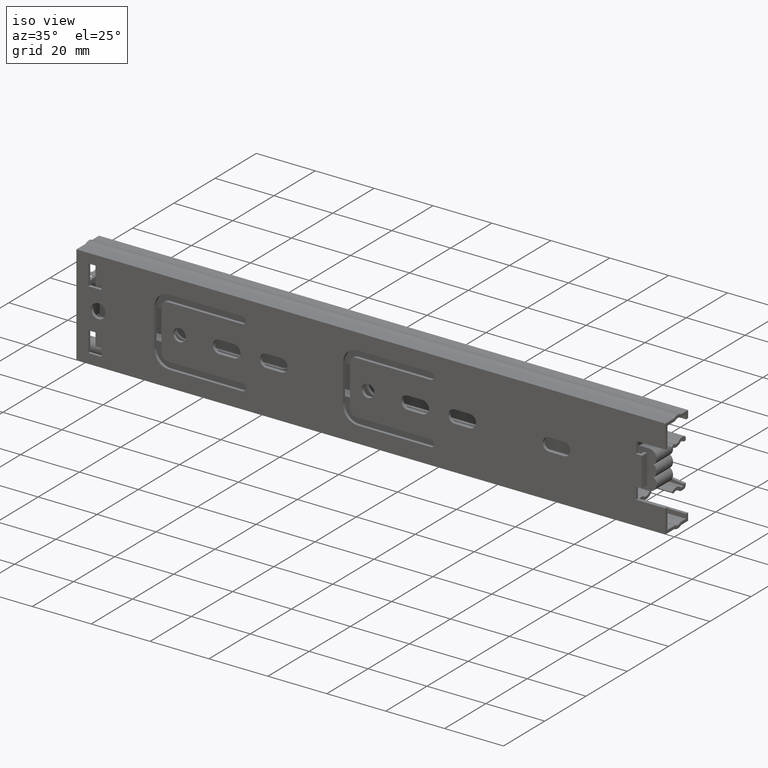
[diagram: clean part render]
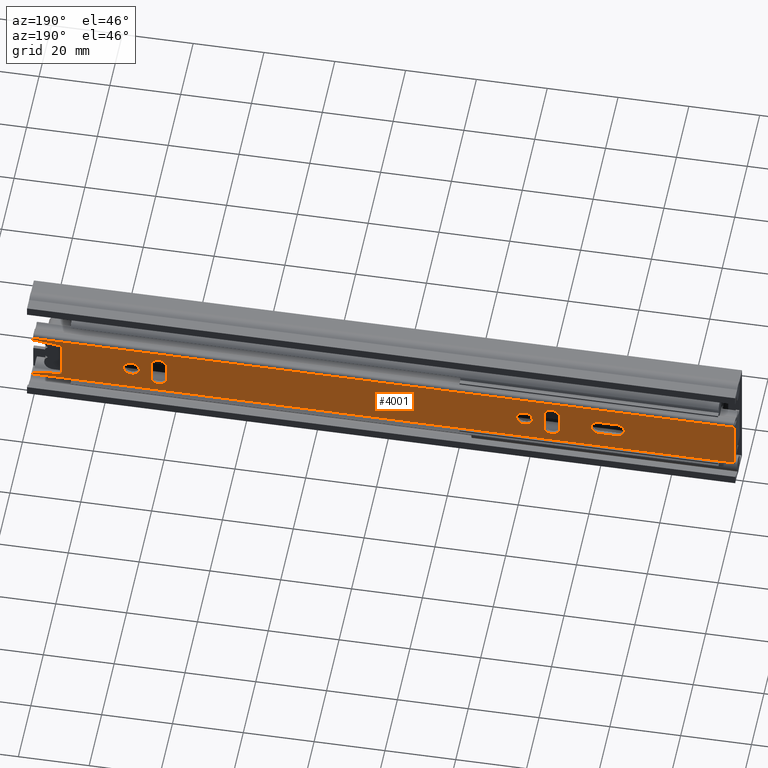
[diagram: tour spotlight — one face highlighted and labeled with its STEP entity id]
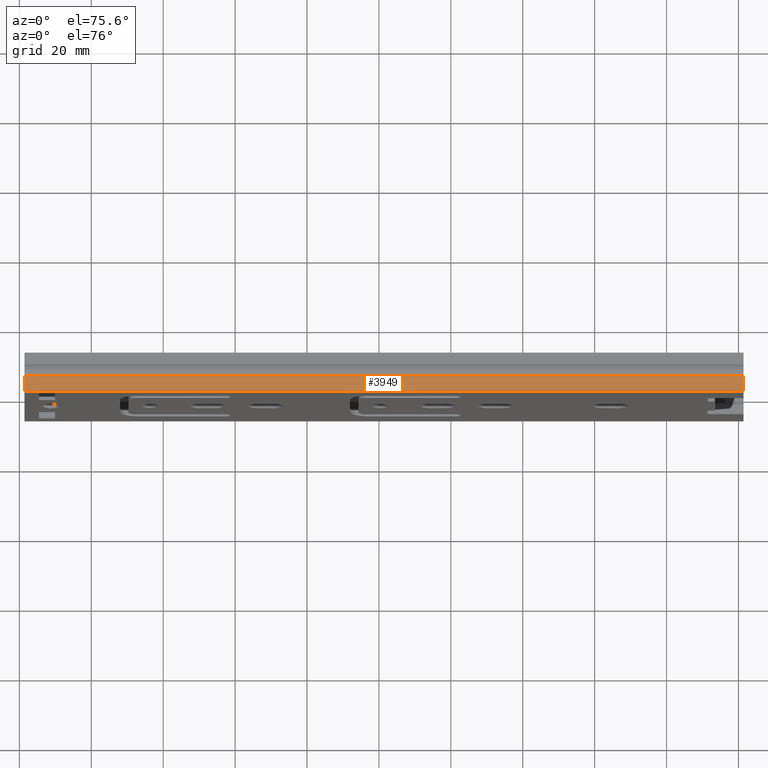
[diagram: tour spotlight — one face highlighted and labeled with its STEP entity id]
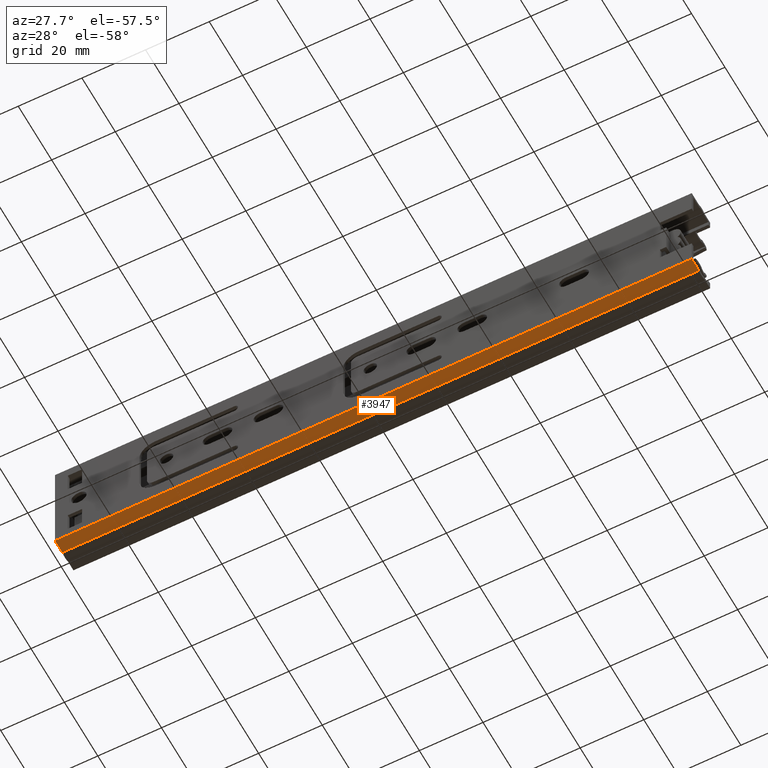
[diagram: tour spotlight — one face highlighted and labeled with its STEP entity id]
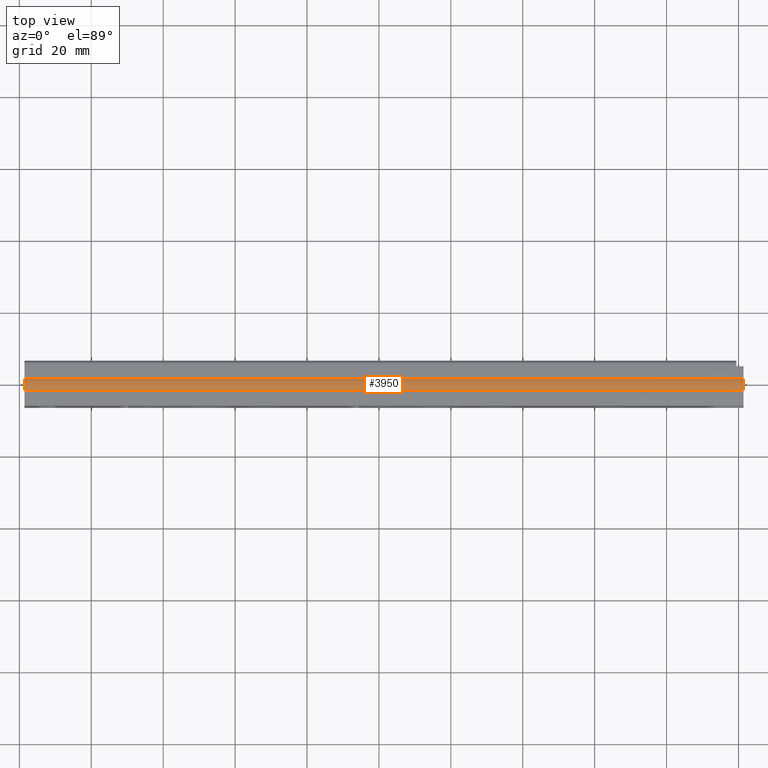
[diagram: tour spotlight — one face highlighted and labeled with its STEP entity id]
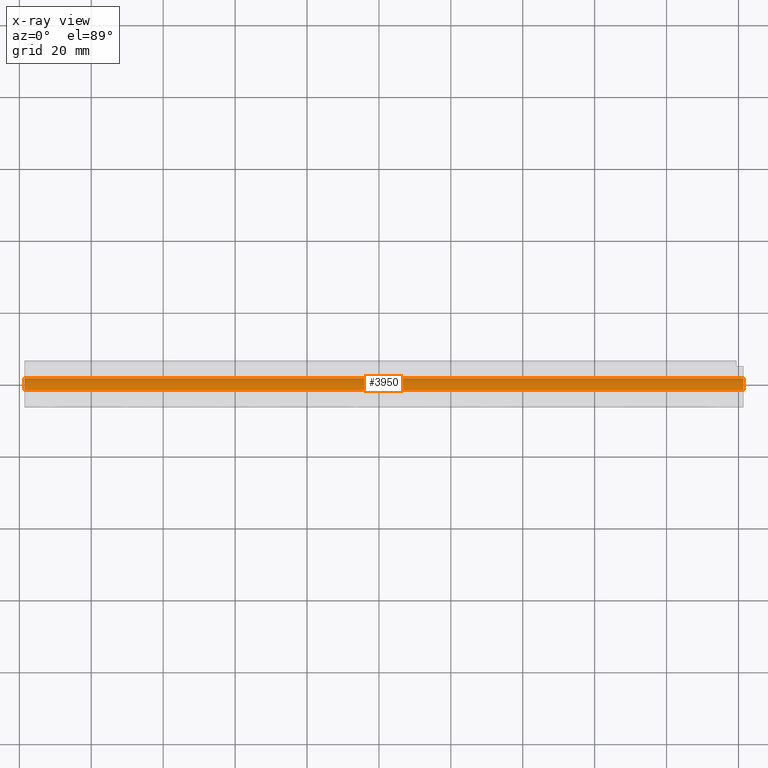
[diagram: x-ray of the same camera — body ghosted, this tour face saturated]
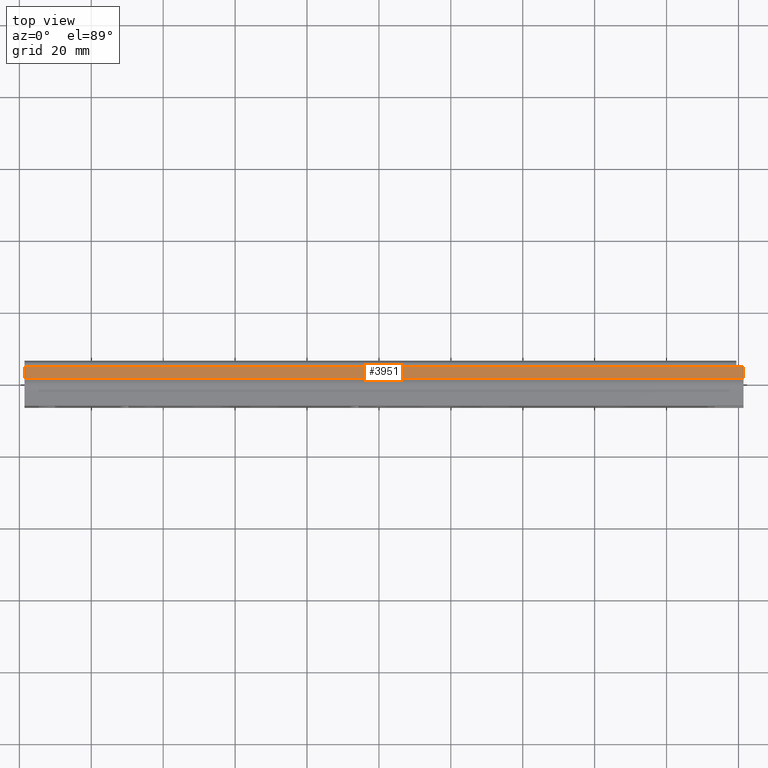
[diagram: tour spotlight — one face highlighted and labeled with its STEP entity id]
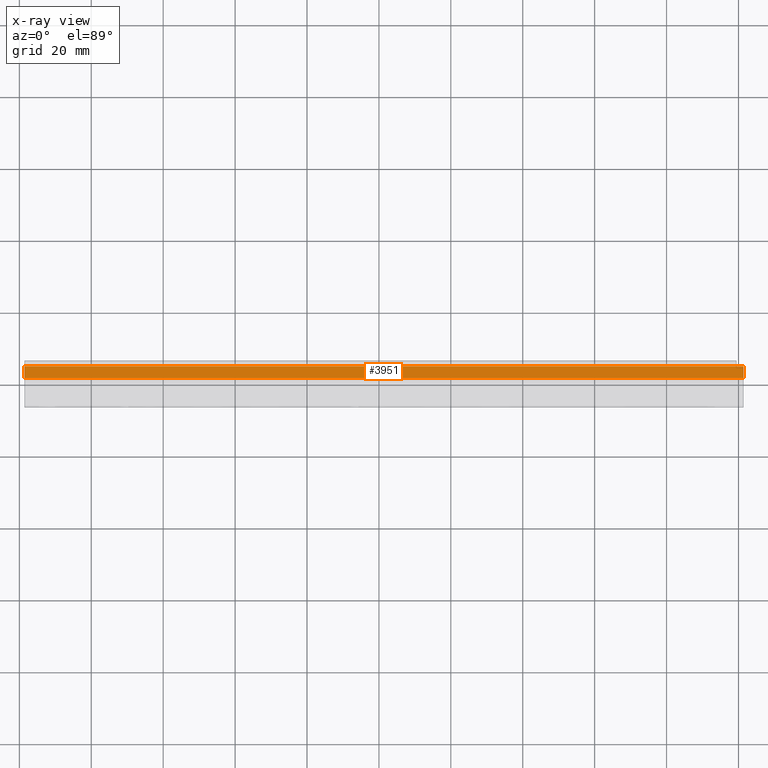
[diagram: x-ray of the same camera — body ghosted, this tour face saturated]
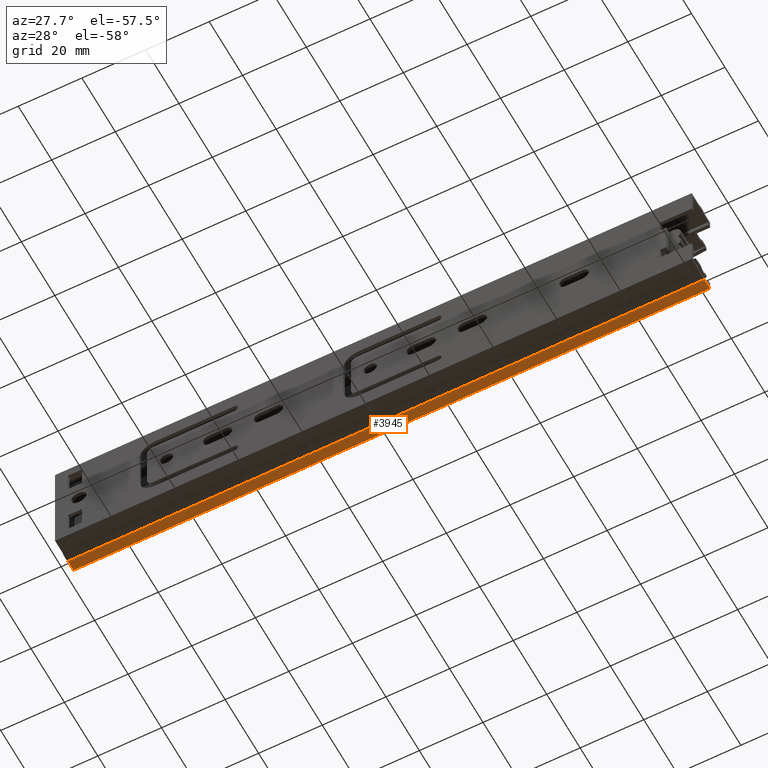
[diagram: tour spotlight — one face highlighted and labeled with its STEP entity id]
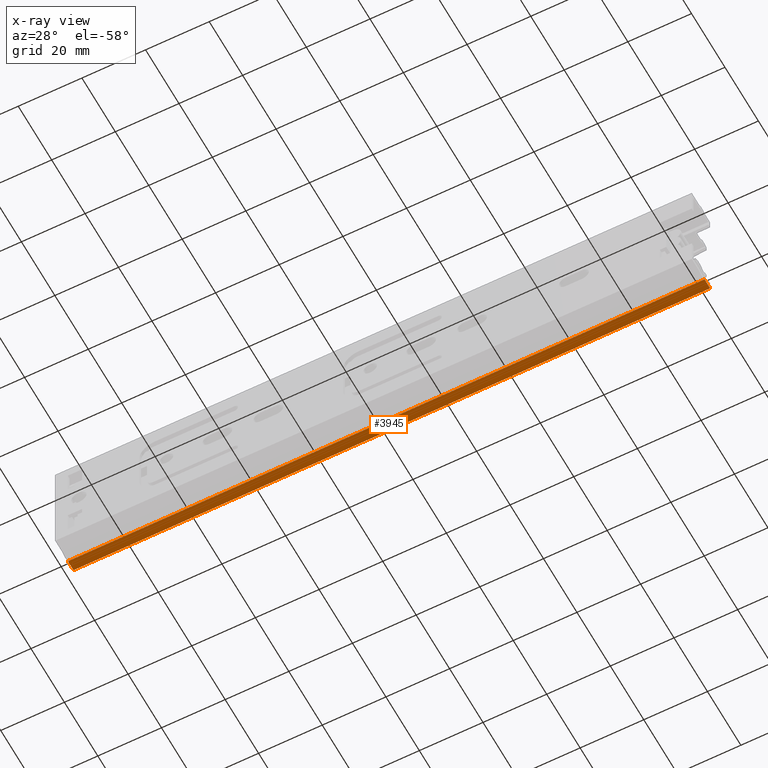
[diagram: x-ray of the same camera — body ghosted, this tour face saturated]
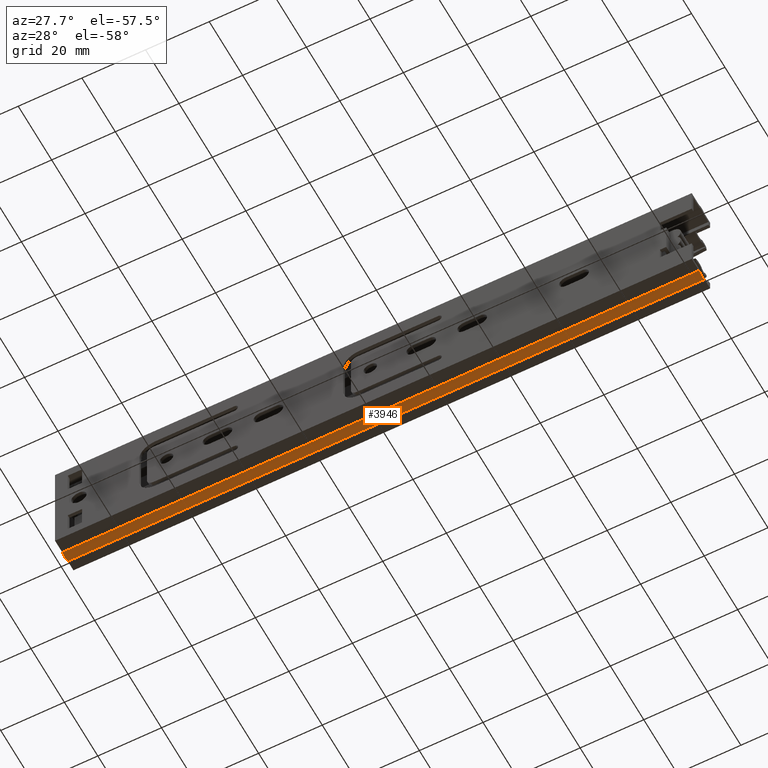
[diagram: tour spotlight — one face highlighted and labeled with its STEP entity id]
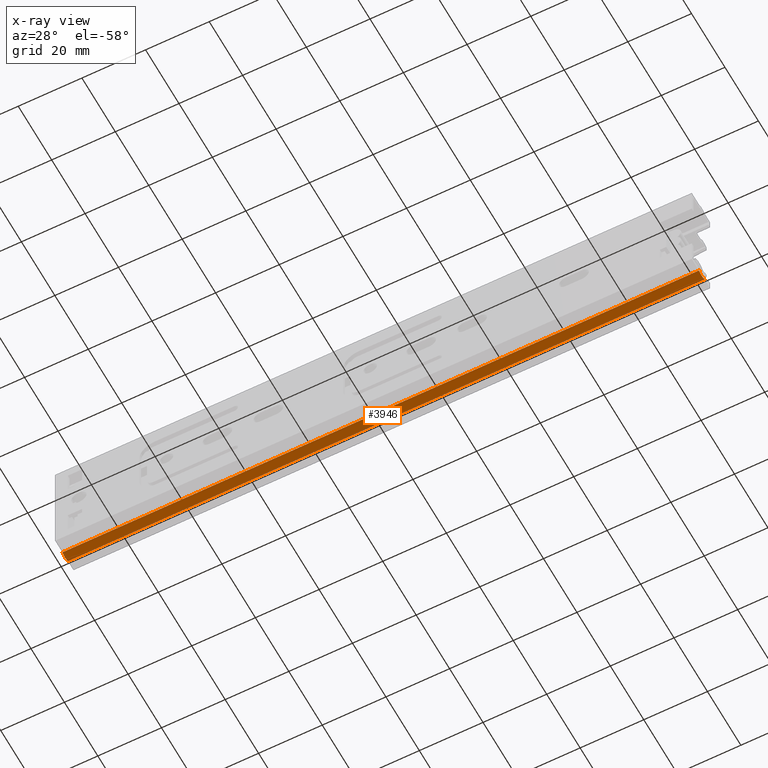
[diagram: x-ray of the same camera — body ghosted, this tour face saturated]
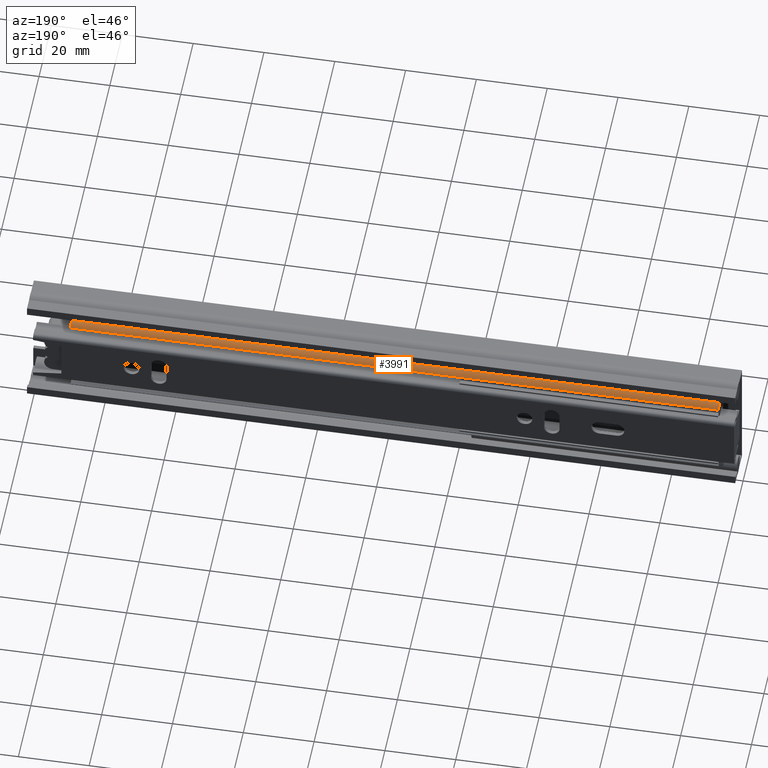
[diagram: tour spotlight — one face highlighted and labeled with its STEP entity id]
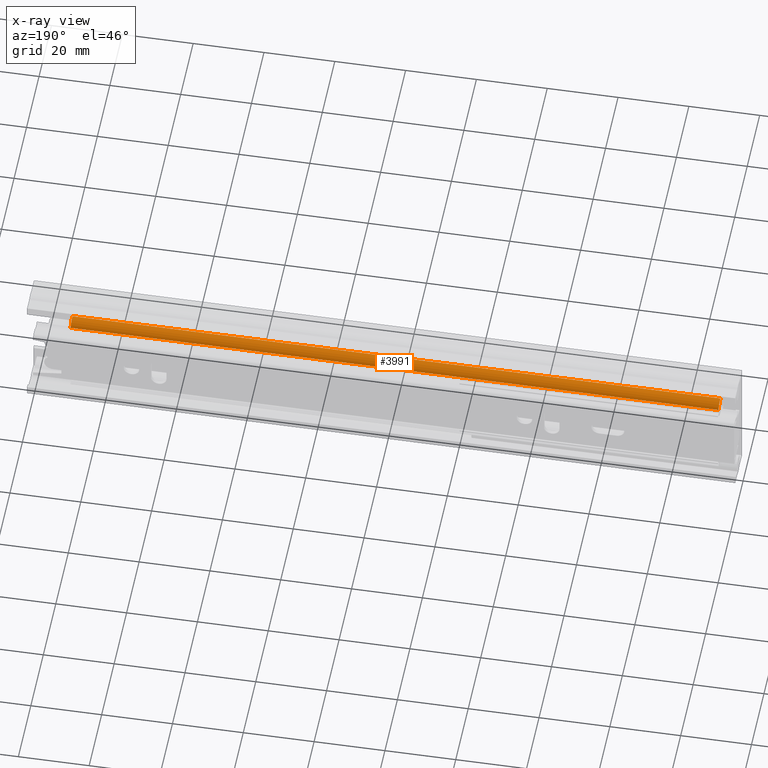
[diagram: x-ray of the same camera — body ghosted, this tour face saturated]
A machine part: a face-by-face anatomy tour. The part has 206 B-rep faces; the first image is the clean iso view, then the 8 largest visible faces are spotlighted one at a time (largest first), each with its STEP entity span.

Face 1 — auxiliary view, entity #4001. In plain terms, the highlighted planar face has unit normal (-0, 1, -0).
Definition (entity closure, byte-faithful):
#160=FACE_BOUND('',#551,.T.);
#161=FACE_BOUND('',#552,.T.);
#162=FACE_BOUND('',#553,.T.);
#163=FACE_BOUND('',#554,.T.);
#164=FACE_BOUND('',#555,.T.);
#310=FACE_OUTER_BOUND('',#550,.T.);
#550=EDGE_LOOP('',(#3366,#3367,#3368,#3369,#3370,#3371,#3372,#3373));
#551=EDGE_LOOP('',(#3374,#3375,#3376,#3377));
#552=EDGE_LOOP('',(#3378,#3379,#3380,#3381));
#553=EDGE_LOOP('',(#3382));
#554=EDGE_LOOP('',(#3383));
#555=EDGE_LOOP('',(#3384,#3385,#3386,#3387));
#908=LINE('',#6365,#1334);
#910=LINE('',#6371,#1336);
#922=LINE('',#6417,#1348);
#923=LINE('',#6419,#1349);
#924=LINE('',#6421,#1350);
#925=LINE('',#6423,#1351);
#926=LINE('',#6425,#1352);
#927=LINE('',#6426,#1353);
#928=LINE('',#6431,#1354);
#929=LINE('',#6434,#1355);
#930=LINE('',#6439,#1356);
#931=LINE('',#6442,#1357);
#932=LINE('',#6451,#1358);
#933=LINE('',#6454,#1359);
#1334=VECTOR('',#5196,198.);
#1336=VECTOR('',#5202,14.3000000000001);
#1348=VECTOR('',#5238,0.650000000000026);
#1349=VECTOR('',#5239,8.06225774829856);
#1350=VECTOR('',#5240,11.);
#1351=VECTOR('',#5241,8.06225774829856);
#1352=VECTOR('',#5242,0.650000000000024);
#1353=VECTOR('',#5243,198.);
#1354=VECTOR('',#5246,4.89999999999999);
#1355=VECTOR('',#5249,4.89999999999999);
#1356=VECTOR('',#5252,4.9);
#1357=VECTOR('',#5255,4.9);
#1358=VECTOR('',#5262,4.9);
#1359=VECTOR('',#5265,4.9);
#1593=CIRCLE('',#4329,2.2);
#1594=CIRCLE('',#4330,2.2);
#1595=CIRCLE('',#4331,2.2);
#1596=CIRCLE('',#4332,2.2);
#1597=CIRCLE('',#4333,2.2);
#1598=CIRCLE('',#4334,2.2);
#1599=CIRCLE('',#4335,2.2);
#1600=CIRCLE('',#4336,2.2);
#1883=VERTEX_POINT('',#6362);
#1884=VERTEX_POINT('',#6364);
#1886=VERTEX_POINT('',#6370);
#1908=VERTEX_POINT('',#6416);
#1909=VERTEX_POINT('',#6418);
#1910=VERTEX_POINT('',#6420);
#1911=VERTEX_POINT('',#6422);
#1912=VERTEX_POINT('',#6424);
#1913=VERTEX_POINT('',#6427);
#1914=VERTEX_POINT('',#6428);
#1915=VERTEX_POINT('',#6430);
#1916=VERTEX_POINT('',#6432);
#1917=VERTEX_POINT('',#6435);
#1918=VERTEX_POINT('',#6436);
#1919=VERTEX_POINT('',#6438);
#1920=VERTEX_POINT('',#6440);
#1921=VERTEX_POINT('',#6443);
#1922=VERTEX_POINT('',#6445);
#1923=VERTEX_POINT('',#6447);
#1924=VERTEX_POINT('',#6448);
#1925=VERTEX_POINT('',#6450);
#1926=VERTEX_POINT('',#6452);
#2391=EDGE_CURVE('',#1883,#1884,#908,.T.);
#2394=EDGE_CURVE('',#1884,#1886,#910,.T.);
#2417=EDGE_CURVE('',#1908,#1883,#922,.T.);
#2418=EDGE_CURVE('',#1908,#1909,#923,.T.);
#2419=EDGE_CURVE('',#1909,#1910,#924,.T.);
#2420=EDGE_CURVE('',#1910,#1911,#925,.T.);
#2421=EDGE_CURVE('',#1912,#1911,#926,.T.);
#2422=EDGE_CURVE('',#1886,#1912,#927,.T.);
#2423=EDGE_CURVE('',#1913,#1914,#1593,.T.);
#2424=EDGE_CURVE('',#1914,#1915,#928,.T.);
#2425=EDGE_CURVE('',#1915,#1916,#1594,.T.);
#2426=EDGE_CURVE('',#1916,#1913,#929,.T.);
#2427=EDGE_CURVE('',#1917,#1918,#1595,.T.);
#2428=EDGE_CURVE('',#1918,#1919,#930,.T.);
#2429=EDGE_CURVE('',#1919,#1920,#1596,.T.);
#2430=EDGE_CURVE('',#1920,#1917,#931,.T.);
#2431=EDGE_CURVE('',#1921,#1921,#1597,.T.);
#2432=EDGE_CURVE('',#1922,#1922,#1598,.T.);
#2433=EDGE_CURVE('',#1923,#1924,#1599,.T.);
#2434=EDGE_CURVE('',#1924,#1925,#932,.T.);
#2435=EDGE_CURVE('',#1925,#1926,#1600,.T.);
#2436=EDGE_CURVE('',#1926,#1923,#933,.T.);
#3366=ORIENTED_EDGE('',*,*,#2391,.F.);
#3367=ORIENTED_EDGE('',*,*,#2417,.F.);
#3368=ORIENTED_EDGE('',*,*,#2418,.T.);
#3369=ORIENTED_EDGE('',*,*,#2419,.T.);
#3370=ORIENTED_EDGE('',*,*,#2420,.T.);
#3371=ORIENTED_EDGE('',*,*,#2421,.F.);
#3372=ORIENTED_EDGE('',*,*,#2422,.F.);
#3373=ORIENTED_EDGE('',*,*,#2394,.F.);
#3374=ORIENTED_EDGE('',*,*,#2423,.T.);
#3375=ORIENTED_EDGE('',*,*,#2424,.T.);
#3376=ORIENTED_EDGE('',*,*,#2425,.T.);
#3377=ORIENTED_EDGE('',*,*,#2426,.T.);
#3378=ORIENTED_EDGE('',*,*,#2427,.T.);
#3379=ORIENTED_EDGE('',*,*,#2428,.T.);
#3380=ORIENTED_EDGE('',*,*,#2429,.T.);
#3381=ORIENTED_EDGE('',*,*,#2430,.T.);
#3382=ORIENTED_EDGE('',*,*,#2431,.T.);
#3383=ORIENTED_EDGE('',*,*,#2432,.T.);
#3384=ORIENTED_EDGE('',*,*,#2433,.T.);
#3385=ORIENTED_EDGE('',*,*,#2434,.T.);
#3386=ORIENTED_EDGE('',*,*,#2435,.T.);
#3387=ORIENTED_EDGE('',*,*,#2436,.T.);
#3818=PLANE('',#4328);
#4001=ADVANCED_FACE('',(#310,#160,#161,#162,#163,#164),#3818,.T.);
#4328=AXIS2_PLACEMENT_3D('',#6415,#5236,#5237);
#4329=AXIS2_PLACEMENT_3D('',#6429,#5244,#5245);
#4330=AXIS2_PLACEMENT_3D('',#6433,#5247,#5248);
#4331=AXIS2_PLACEMENT_3D('',#6437,#5250,#5251);
#4332=AXIS2_PLACEMENT_3D('',#6441,#5253,#5254);
#4333=AXIS2_PLACEMENT_3D('',#6444,#5256,#5257);
#4334=AXIS2_PLACEMENT_3D('',#6446,#5258,#5259);
#4335=AXIS2_PLACEMENT_3D('',#6449,#5260,#5261);
#4336=AXIS2_PLACEMENT_3D('',#6453,#5263,#5264);
#5196=DIRECTION('',(-1.,0.,0.));
#5202=DIRECTION('',(0.,0.,-1.));
#5236=DIRECTION('center_axis',(0.,1.,0.));
#5237=DIRECTION('ref_axis',(0.,0.,1.));
#5238=DIRECTION('',(0.,0.,1.));
#5239=DIRECTION('',(-0.992277876713668,0.,-0.124034734589208));
#5240=DIRECTION('',(0.,0.,-1.));
#5241=DIRECTION('',(0.992277876713668,0.,-0.124034734589208));
#5242=DIRECTION('',(0.,0.,1.));
#5243=DIRECTION('',(1.,0.,0.));
#5244=DIRECTION('center_axis',(0.,-1.,0.));
#5245=DIRECTION('ref_axis',(-1.,0.,7.56970244062635E-15));
#5246=DIRECTION('',(-1.45008721583694E-14,0.,-1.));
#5247=DIRECTION('center_axis',(0.,-1.,0.));
#5248=DIRECTION('ref_axis',(1.,0.,-8.07434927000118E-15));
#5249=DIRECTION('',(1.45008721583694E-14,0.,1.));
#5250=DIRECTION('center_axis',(0.,-1.,0.));
#5251=DIRECTION('ref_axis',(0.,0.,1.));
#5252=DIRECTION('',(1.,0.,0.));
#5253=DIRECTION('center_axis',(0.,-1.,0.));
#5254=DIRECTION('ref_axis',(0.,0.,-1.));
#5255=DIRECTION('',(-1.,0.,0.));
#5256=DIRECTION('center_axis',(0.,-1.,0.));
#5257=DIRECTION('ref_axis',(-1.,0.,0.));
#5258=DIRECTION('center_axis',(0.,-1.,0.));
#5259=DIRECTION('ref_axis',(-1.,0.,0.));
#5260=DIRECTION('center_axis',(0.,-1.,0.));
#5261=DIRECTION('ref_axis',(-1.,0.,0.));
#5262=DIRECTION('',(0.,0.,-1.));
#5263=DIRECTION('center_axis',(0.,-1.,0.));
#5264=DIRECTION('ref_axis',(1.,0.,0.));
#5265=DIRECTION('',(1.81260901979617E-15,0.,1.));
#6362=CARTESIAN_POINT('',(99.,12.7,7.15000000000003));
#6364=CARTESIAN_POINT('',(-99.,12.7,7.15000000000003));
#6365=CARTESIAN_POINT('',(0.,12.7,7.15000000000003));
#6370=CARTESIAN_POINT('',(-99.,12.7,-7.15000000000003));
#6371=CARTESIAN_POINT('',(-99.,12.7,0.));
#6415=CARTESIAN_POINT('Origin',(0.,12.7,-8.15));
#6416=CARTESIAN_POINT('',(99.,12.7,6.5));
#6417=CARTESIAN_POINT('',(99.,12.7,-8.15));
#6418=CARTESIAN_POINT('',(91.,12.7,5.5));
#6419=CARTESIAN_POINT('',(49.36,12.7,0.295000000000013));
#6420=CARTESIAN_POINT('',(91.,12.7,-5.5));
#6421=CARTESIAN_POINT('',(91.,12.7,-1.325));
#6422=CARTESIAN_POINT('',(99.,12.7,-6.5));
#6423=CARTESIAN_POINT('',(46.3630769230769,12.7,0.0796153846153858));
#6424=CARTESIAN_POINT('',(99.,12.7,-7.15000000000003));
#6425=CARTESIAN_POINT('',(99.,12.7,-8.15));
#6426=CARTESIAN_POINT('',(0.,12.7,-7.15000000000003));
#6427=CARTESIAN_POINT('',(65.7000000000001,12.7,2.44999999999998));
#6428=CARTESIAN_POINT('',(61.3000000000001,12.7,2.45000000000001));
#6429=CARTESIAN_POINT('Origin',(63.5,12.7,2.44999999999999));
#6430=CARTESIAN_POINT('',(61.3,12.7,-2.44999999999998));
#6431=CARTESIAN_POINT('',(61.3,12.7,-2.85000000000044));
#6432=CARTESIAN_POINT('',(65.7,12.7,-2.45000000000001));
#6433=CARTESIAN_POINT('Origin',(63.5,12.7,-2.44999999999999));
#6434=CARTESIAN_POINT('',(65.6999999999999,12.7,-5.30000000000048));
#6435=CARTESIAN_POINT('',(-65.8,12.7,2.2));
#6436=CARTESIAN_POINT('',(-65.8,12.7,-2.2));
#6437=CARTESIAN_POINT('Origin',(-65.8,12.7,0.));
#6438=CARTESIAN_POINT('',(-60.9,12.7,-2.2));
#6439=CARTESIAN_POINT('',(-32.9,12.7,-2.2));
#6440=CARTESIAN_POINT('',(-60.9,12.7,2.2));
#6441=CARTESIAN_POINT('Origin',(-60.9,12.7,0.));
#6442=CARTESIAN_POINT('',(-30.45,12.7,2.2));
#6443=CARTESIAN_POINT('',(-37.6,12.7,8.40800728812739E-16));
#6444=CARTESIAN_POINT('Origin',(-39.8,12.7,1.11022302462516E-15));
#6445=CARTESIAN_POINT('',(73.4000000000001,12.7,-2.69422295812418E-16));
#6446=CARTESIAN_POINT('Origin',(71.2000000000001,12.7,0.));
#6447=CARTESIAN_POINT('',(-45.3,12.7,2.45));
#6448=CARTESIAN_POINT('',(-49.7,12.7,2.45));
#6449=CARTESIAN_POINT('Origin',(-47.5,12.7,2.45));
#6450=CARTESIAN_POINT('',(-49.7,12.7,-2.45));
#6451=CARTESIAN_POINT('',(-49.7,12.7,-2.85));
#6452=CARTESIAN_POINT('',(-45.3,12.7,-2.45));
#6453=CARTESIAN_POINT('Origin',(-47.5,12.7,-2.45));
#6454=CARTESIAN_POINT('',(-45.3,12.7,-5.29999999999996));

Face 2 — auxiliary view, entity #3949. In plain terms, the highlighted planar face has unit normal (0, 0, 1).
Definition (entity closure, byte-faithful):
#258=FACE_OUTER_BOUND('',#492,.T.);
#492=EDGE_LOOP('',(#3090,#3091,#3092,#3093));
#706=LINE('',#5821,#1132);
#746=LINE('',#5954,#1172);
#821=LINE('',#6115,#1247);
#828=LINE('',#6132,#1254);
#1132=VECTOR('',#4630,200.);
#1172=VECTOR('',#4726,4.35);
#1247=VECTOR('',#4939,4.35);
#1254=VECTOR('',#4952,200.);
#1723=VERTEX_POINT('',#5818);
#1724=VERTEX_POINT('',#5820);
#1789=VERTEX_POINT('',#5952);
#1806=VERTEX_POINT('',#6114);
#2127=EDGE_CURVE('',#1724,#1723,#706,.T.);
#2194=EDGE_CURVE('',#1789,#1723,#746,.T.);
#2273=EDGE_CURVE('',#1724,#1806,#821,.T.);
#2282=EDGE_CURVE('',#1806,#1789,#828,.T.);
#3090=ORIENTED_EDGE('',*,*,#2127,.T.);
#3091=ORIENTED_EDGE('',*,*,#2194,.F.);
#3092=ORIENTED_EDGE('',*,*,#2282,.F.);
#3093=ORIENTED_EDGE('',*,*,#2273,.F.);
#3783=PLANE('',#4232);
#3949=ADVANCED_FACE('',(#258),#3783,.T.);
#4232=AXIS2_PLACEMENT_3D('',#6131,#4950,#4951);
#4630=DIRECTION('',(1.,0.,0.));
#4726=DIRECTION('',(0.,-1.,0.));
#4939=DIRECTION('',(0.,1.,0.));
#4950=DIRECTION('center_axis',(0.,0.,1.));
#4951=DIRECTION('ref_axis',(0.,-1.,0.));
#4952=DIRECTION('',(1.,0.,0.));
#5818=CARTESIAN_POINT('',(100.,5.20474889637625E-15,17.));
#5820=CARTESIAN_POINT('',(-100.,5.20474889637625E-15,17.));
#5821=CARTESIAN_POINT('',(0.,5.20474889637625E-15,17.));
#5952=CARTESIAN_POINT('',(100.,4.35000000000001,17.));
#5954=CARTESIAN_POINT('',(100.,4.35000000000001,17.));
#6114=CARTESIAN_POINT('',(-100.,4.35000000000001,17.));
#6115=CARTESIAN_POINT('',(-100.,4.35000000000001,17.));
#6131=CARTESIAN_POINT('Origin',(0.,4.35000000000001,17.));
#6132=CARTESIAN_POINT('',(0.,4.35000000000001,17.));

Face 3 — auxiliary view, entity #3947. In plain terms, the highlighted planar face has unit normal (0, 0, -1).
Definition (entity closure, byte-faithful):
#256=FACE_OUTER_BOUND('',#490,.T.);
#490=EDGE_LOOP('',(#3066,#3067,#3068,#3069));
#708=LINE('',#5825,#1134);
#818=LINE('',#6108,#1244);
#819=LINE('',#6111,#1245);
#820=LINE('',#6112,#1246);
#1134=VECTOR('',#4632,200.);
#1244=VECTOR('',#4930,200.);
#1245=VECTOR('',#4935,4.35);
#1246=VECTOR('',#4936,4.35);
#1725=VERTEX_POINT('',#5822);
#1726=VERTEX_POINT('',#5824);
#1804=VERTEX_POINT('',#6105);
#1805=VERTEX_POINT('',#6107);
#2129=EDGE_CURVE('',#1725,#1726,#708,.T.);
#2269=EDGE_CURVE('',#1805,#1804,#818,.T.);
#2271=EDGE_CURVE('',#1726,#1804,#819,.T.);
#2272=EDGE_CURVE('',#1805,#1725,#820,.T.);
#3066=ORIENTED_EDGE('',*,*,#2269,.T.);
#3067=ORIENTED_EDGE('',*,*,#2271,.F.);
#3068=ORIENTED_EDGE('',*,*,#2129,.F.);
#3069=ORIENTED_EDGE('',*,*,#2272,.F.);
#3781=PLANE('',#4228);
#3947=ADVANCED_FACE('',(#256),#3781,.T.);
#4228=AXIS2_PLACEMENT_3D('',#6110,#4933,#4934);
#4632=DIRECTION('',(1.,0.,0.));
#4930=DIRECTION('',(1.,0.,0.));
#4933=DIRECTION('center_axis',(0.,0.,-1.));
#4934=DIRECTION('ref_axis',(0.,1.,0.));
#4935=DIRECTION('',(0.,1.,0.));
#4936=DIRECTION('',(0.,-1.,0.));
#5822=CARTESIAN_POINT('',(-100.,5.20474889637625E-15,-17.));
#5824=CARTESIAN_POINT('',(100.,5.20474889637625E-15,-17.));
#5825=CARTESIAN_POINT('',(0.,5.20474889637625E-15,-17.));
#6105=CARTESIAN_POINT('',(100.,4.35000000000001,-17.));
#6107=CARTESIAN_POINT('',(-100.,4.35000000000001,-17.));
#6108=CARTESIAN_POINT('',(0.,4.35000000000001,-17.));
#6110=CARTESIAN_POINT('Origin',(0.,5.20474889637625E-15,-17.));
#6111=CARTESIAN_POINT('',(100.,5.20474889637625E-15,-17.));
#6112=CARTESIAN_POINT('',(-100.,5.20474889637625E-15,-17.));

Face 4 — top view, entity #3950. An x-ray twin of the same camera follows (body ghosted, this face saturated) — the face is partly hidden behind the body. In plain terms, the highlighted cylindrical surface (edge-blend (fillet) strip) has radius 2.9725 mm, axis along (1, 0, 0).
Definition (entity closure, byte-faithful):
#86=CYLINDRICAL_SURFACE('',#4233,2.9725);
#259=FACE_OUTER_BOUND('',#493,.T.);
#493=EDGE_LOOP('',(#3094,#3095,#3096,#3097));
#828=LINE('',#6132,#1254);
#829=LINE('',#6134,#1255);
#1254=VECTOR('',#4952,200.);
#1255=VECTOR('',#4955,200.);
#1545=CIRCLE('',#4160,2.9725);
#1550=CIRCLE('',#4230,2.9725);
#1788=VERTEX_POINT('',#5950);
#1789=VERTEX_POINT('',#5952);
#1806=VERTEX_POINT('',#6114);
#1807=VERTEX_POINT('',#6116);
#2193=EDGE_CURVE('',#1788,#1789,#1545,.T.);
#2274=EDGE_CURVE('',#1806,#1807,#1550,.T.);
#2282=EDGE_CURVE('',#1806,#1789,#828,.T.);
#2283=EDGE_CURVE('',#1807,#1788,#829,.T.);
#3094=ORIENTED_EDGE('',*,*,#2282,.T.);
#3095=ORIENTED_EDGE('',*,*,#2193,.F.);
#3096=ORIENTED_EDGE('',*,*,#2283,.F.);
#3097=ORIENTED_EDGE('',*,*,#2274,.F.);
#3950=ADVANCED_FACE('',(#259),#86,.T.);
#4160=AXIS2_PLACEMENT_3D('',#5953,#4724,#4725);
#4230=AXIS2_PLACEMENT_3D('',#6117,#4940,#4941);
#4233=AXIS2_PLACEMENT_3D('',#6133,#4953,#4954);
#4724=DIRECTION('center_axis',(1.,0.,0.));
#4725=DIRECTION('ref_axis',(0.,0.555088309503784,0.83179142136249));
#4940=DIRECTION('center_axis',(-1.,0.,0.));
#4941=DIRECTION('ref_axis',(0.,0.555088309503784,0.83179142136249));
#4952=DIRECTION('',(1.,0.,0.));
#4953=DIRECTION('center_axis',(1.,0.,0.));
#4954=DIRECTION('ref_axis',(0.,0.555088309503784,0.83179142136249));
#4955=DIRECTION('',(1.,0.,0.));
#5950=CARTESIAN_POINT('',(100.,7.65,17.));
#5952=CARTESIAN_POINT('',(100.,4.35000000000001,17.));
#5953=CARTESIAN_POINT('Origin',(100.,6.00000000000001,14.5275));
#6114=CARTESIAN_POINT('',(-100.,4.35000000000001,17.));
#6116=CARTESIAN_POINT('',(-100.,7.65,17.));
#6117=CARTESIAN_POINT('Origin',(-100.,6.00000000000001,14.5275));
#6132=CARTESIAN_POINT('',(0.,4.35000000000001,17.));
#6133=CARTESIAN_POINT('Origin',(0.,6.00000000000001,14.5275));
#6134=CARTESIAN_POINT('',(0.,7.65,17.));

Face 5 — top view, entity #3951. An x-ray twin of the same camera follows (body ghosted, this face saturated) — the face is partly hidden behind the body. In plain terms, the highlighted planar face has unit normal (0, 0, 1).
Definition (entity closure, byte-faithful):
#260=FACE_OUTER_BOUND('',#494,.T.);
#494=EDGE_LOOP('',(#3098,#3099,#3100,#3101));
#745=LINE('',#5951,#1171);
#822=LINE('',#6119,#1248);
#829=LINE('',#6134,#1255);
#830=LINE('',#6136,#1256);
#1171=VECTOR('',#4723,3.35000000000001);
#1248=VECTOR('',#4942,3.35000000000001);
#1255=VECTOR('',#4955,200.);
#1256=VECTOR('',#4958,200.);
#1787=VERTEX_POINT('',#5948);
#1788=VERTEX_POINT('',#5950);
#1807=VERTEX_POINT('',#6116);
#1808=VERTEX_POINT('',#6118);
#2192=EDGE_CURVE('',#1787,#1788,#745,.T.);
#2275=EDGE_CURVE('',#1807,#1808,#822,.T.);
#2283=EDGE_CURVE('',#1807,#1788,#829,.T.);
#2284=EDGE_CURVE('',#1808,#1787,#830,.T.);
#3098=ORIENTED_EDGE('',*,*,#2283,.T.);
#3099=ORIENTED_EDGE('',*,*,#2192,.F.);
#3100=ORIENTED_EDGE('',*,*,#2284,.F.);
#3101=ORIENTED_EDGE('',*,*,#2275,.F.);
#3784=PLANE('',#4234);
#3951=ADVANCED_FACE('',(#260),#3784,.T.);
#4234=AXIS2_PLACEMENT_3D('',#6135,#4956,#4957);
#4723=DIRECTION('',(0.,-1.,6.62819716194122E-16));
#4942=DIRECTION('',(0.,1.,-6.62819716194122E-16));
#4955=DIRECTION('',(1.,0.,0.));
#4956=DIRECTION('center_axis',(0.,6.62819716194122E-16,1.));
#4957=DIRECTION('ref_axis',(0.,-1.,7.105427357601E-16));
#4958=DIRECTION('',(1.,0.,0.));
#5948=CARTESIAN_POINT('',(100.,11.,17.));
#5950=CARTESIAN_POINT('',(100.,7.65,17.));
#5951=CARTESIAN_POINT('',(100.,11.,17.));
#6116=CARTESIAN_POINT('',(-100.,7.65,17.));
#6118=CARTESIAN_POINT('',(-100.,11.,17.));
#6119=CARTESIAN_POINT('',(-100.,11.,17.));
#6134=CARTESIAN_POINT('',(0.,7.65,17.));
#6135=CARTESIAN_POINT('Origin',(0.,11.,17.));
#6136=CARTESIAN_POINT('',(0.,11.,17.));

Face 6 — auxiliary view, entity #3945. An x-ray twin of the same camera follows (body ghosted, this face saturated) — the face is partly hidden behind the body. In plain terms, the highlighted planar face has unit normal (0, 0, -1).
Definition (entity closure, byte-faithful):
#254=FACE_OUTER_BOUND('',#488,.T.);
#488=EDGE_LOOP('',(#3058,#3059,#3060,#3061));
#813=LINE('',#6096,#1239);
#815=LINE('',#6100,#1241);
#816=LINE('',#6102,#1242);
#817=LINE('',#6103,#1243);
#1239=VECTOR('',#4919,200.);
#1241=VECTOR('',#4923,3.35000000000001);
#1242=VECTOR('',#4924,200.);
#1243=VECTOR('',#4925,3.35000000000001);
#1800=VERTEX_POINT('',#6093);
#1801=VERTEX_POINT('',#6095);
#1802=VERTEX_POINT('',#6099);
#1803=VERTEX_POINT('',#6101);
#2263=EDGE_CURVE('',#1801,#1800,#813,.T.);
#2265=EDGE_CURVE('',#1802,#1800,#815,.T.);
#2266=EDGE_CURVE('',#1803,#1802,#816,.T.);
#2267=EDGE_CURVE('',#1801,#1803,#817,.T.);
#3058=ORIENTED_EDGE('',*,*,#2263,.T.);
#3059=ORIENTED_EDGE('',*,*,#2265,.F.);
#3060=ORIENTED_EDGE('',*,*,#2266,.F.);
#3061=ORIENTED_EDGE('',*,*,#2267,.F.);
#3780=PLANE('',#4224);
#3945=ADVANCED_FACE('',(#254),#3780,.T.);
#4224=AXIS2_PLACEMENT_3D('',#6098,#4921,#4922);
#4919=DIRECTION('',(1.,0.,0.));
#4921=DIRECTION('center_axis',(0.,6.62819716194122E-16,-1.));
#4922=DIRECTION('ref_axis',(0.,1.,7.105427357601E-16));
#4923=DIRECTION('',(0.,1.,6.62819716194122E-16));
#4924=DIRECTION('',(1.,0.,0.));
#4925=DIRECTION('',(0.,-1.,-6.62819716194122E-16));
#6093=CARTESIAN_POINT('',(100.,11.,-17.));
#6095=CARTESIAN_POINT('',(-100.,11.,-17.));
#6096=CARTESIAN_POINT('',(0.,11.,-17.));
#6098=CARTESIAN_POINT('Origin',(0.,7.65,-17.));
#6099=CARTESIAN_POINT('',(100.,7.65,-17.));
#6100=CARTESIAN_POINT('',(100.,7.65,-17.));
#6101=CARTESIAN_POINT('',(-100.,7.65,-17.));
#6102=CARTESIAN_POINT('',(0.,7.65,-17.));
#6103=CARTESIAN_POINT('',(-100.,7.65,-17.));

Face 7 — auxiliary view, entity #3946. An x-ray twin of the same camera follows (body ghosted, this face saturated) — the face is partly hidden behind the body. In plain terms, the highlighted cylindrical surface (edge-blend (fillet) strip) has radius 2.9725 mm, axis along (1, 0, 0).
Definition (entity closure, byte-faithful):
#85=CYLINDRICAL_SURFACE('',#4225,2.9725);
#255=FACE_OUTER_BOUND('',#489,.T.);
#489=EDGE_LOOP('',(#3062,#3063,#3064,#3065));
#816=LINE('',#6102,#1242);
#818=LINE('',#6108,#1244);
#1242=VECTOR('',#4924,200.);
#1244=VECTOR('',#4930,200.);
#1548=CIRCLE('',#4226,2.9725);
#1549=CIRCLE('',#4227,2.9725);
#1802=VERTEX_POINT('',#6099);
#1803=VERTEX_POINT('',#6101);
#1804=VERTEX_POINT('',#6105);
#1805=VERTEX_POINT('',#6107);
#2266=EDGE_CURVE('',#1803,#1802,#816,.T.);
#2268=EDGE_CURVE('',#1804,#1802,#1548,.T.);
#2269=EDGE_CURVE('',#1805,#1804,#818,.T.);
#2270=EDGE_CURVE('',#1803,#1805,#1549,.T.);
#3062=ORIENTED_EDGE('',*,*,#2266,.T.);
#3063=ORIENTED_EDGE('',*,*,#2268,.F.);
#3064=ORIENTED_EDGE('',*,*,#2269,.F.);
#3065=ORIENTED_EDGE('',*,*,#2270,.F.);
#3946=ADVANCED_FACE('',(#255),#85,.T.);
#4225=AXIS2_PLACEMENT_3D('',#6104,#4926,#4927);
#4226=AXIS2_PLACEMENT_3D('',#6106,#4928,#4929);
#4227=AXIS2_PLACEMENT_3D('',#6109,#4931,#4932);
#4924=DIRECTION('',(1.,0.,0.));
#4926=DIRECTION('center_axis',(1.,0.,0.));
#4927=DIRECTION('ref_axis',(0.,-0.555088309503785,-0.83179142136249));
#4928=DIRECTION('center_axis',(1.,0.,0.));
#4929=DIRECTION('ref_axis',(0.,-0.555088309503785,-0.83179142136249));
#4930=DIRECTION('',(1.,0.,0.));
#4931=DIRECTION('center_axis',(-1.,0.,0.));
#4932=DIRECTION('ref_axis',(0.,-0.555088309503785,-0.83179142136249));
#6099=CARTESIAN_POINT('',(100.,7.65,-17.));
#6101=CARTESIAN_POINT('',(-100.,7.65,-17.));
#6102=CARTESIAN_POINT('',(0.,7.65,-17.));
#6104=CARTESIAN_POINT('Origin',(0.,6.00000000000001,-14.5275));
#6105=CARTESIAN_POINT('',(100.,4.35000000000001,-17.));
#6106=CARTESIAN_POINT('Origin',(100.,6.00000000000001,-14.5275));
#6107=CARTESIAN_POINT('',(-100.,4.35000000000001,-17.));
#6108=CARTESIAN_POINT('',(0.,4.35000000000001,-17.));
#6109=CARTESIAN_POINT('Origin',(-100.,6.00000000000001,-14.5275));

Face 8 — auxiliary view, entity #3991. An x-ray twin of the same camera follows (body ghosted, this face saturated) — the face is partly hidden behind the body. In plain terms, the highlighted cylindrical surface (edge-blend (fillet) strip) has radius 3.25 mm, axis along (1, -0, 0).
Definition (entity closure, byte-faithful):
#99=CYLINDRICAL_SURFACE('',#4304,3.25);
#300=FACE_OUTER_BOUND('',#538,.T.);
#538=EDGE_LOOP('',(#3298,#3299,#3300,#3301));
#900=LINE('',#6343,#1326);
#901=LINE('',#6345,#1327);
#1326=VECTOR('',#5166,183.);
#1327=VECTOR('',#5169,183.);
#1568=CIRCLE('',#4275,3.25);
#1578=CIRCLE('',#4297,3.25);
#1846=VERTEX_POINT('',#6237);
#1847=VERTEX_POINT('',#6239);
#1876=VERTEX_POINT('',#6321);
#1877=VERTEX_POINT('',#6323);
#2330=EDGE_CURVE('',#1846,#1847,#1568,.T.);
#2372=EDGE_CURVE('',#1876,#1877,#1578,.T.);
#2382=EDGE_CURVE('',#1846,#1877,#900,.T.);
#2383=EDGE_CURVE('',#1847,#1876,#901,.T.);
#3298=ORIENTED_EDGE('',*,*,#2382,.T.);
#3299=ORIENTED_EDGE('',*,*,#2372,.F.);
#3300=ORIENTED_EDGE('',*,*,#2383,.F.);
#3301=ORIENTED_EDGE('',*,*,#2330,.F.);
#3991=ADVANCED_FACE('',(#300),#99,.T.);
#4275=AXIS2_PLACEMENT_3D('',#6240,#5068,#5069);
#4297=AXIS2_PLACEMENT_3D('',#6324,#5144,#5145);
#4304=AXIS2_PLACEMENT_3D('',#6344,#5167,#5168);
#5068=DIRECTION('center_axis',(-1.,0.,0.));
#5069=DIRECTION('ref_axis',(0.,0.832619023245218,0.553846153846155));
#5144=DIRECTION('center_axis',(1.,0.,0.));
#5145=DIRECTION('ref_axis',(0.,0.832619023245218,0.553846153846155));
#5166=DIRECTION('',(1.,0.,0.));
#5167=DIRECTION('center_axis',(1.,0.,0.));
#5168=DIRECTION('ref_axis',(0.,0.832619023245218,0.553846153846155));
#5169=DIRECTION('',(1.,0.,0.));
#6237=CARTESIAN_POINT('',(-91.5,7.59203820673923,12.6100583821151));
#6239=CARTESIAN_POINT('',(-91.5,10.806011825547,11.2));
#6240=CARTESIAN_POINT('Origin',(-91.5,8.1,9.39999999999999));
#6321=CARTESIAN_POINT('',(91.5,10.806011825547,11.2));
#6323=CARTESIAN_POINT('',(91.5,7.59203820673923,12.6100583821151));
#6324=CARTESIAN_POINT('Origin',(91.5,8.1,9.39999999999999));
#6343=CARTESIAN_POINT('',(0.,7.59203820673923,12.6100583821151));
#6344=CARTESIAN_POINT('Origin',(0.,8.1,9.39999999999999));
#6345=CARTESIAN_POINT('',(0.,10.806011825547,11.2));